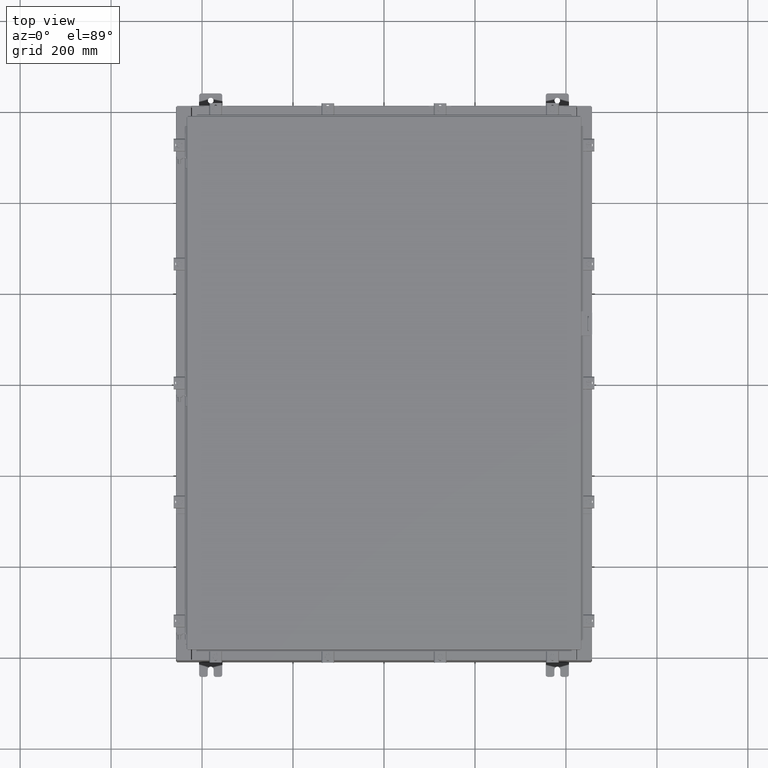
[diagram: clean part render]
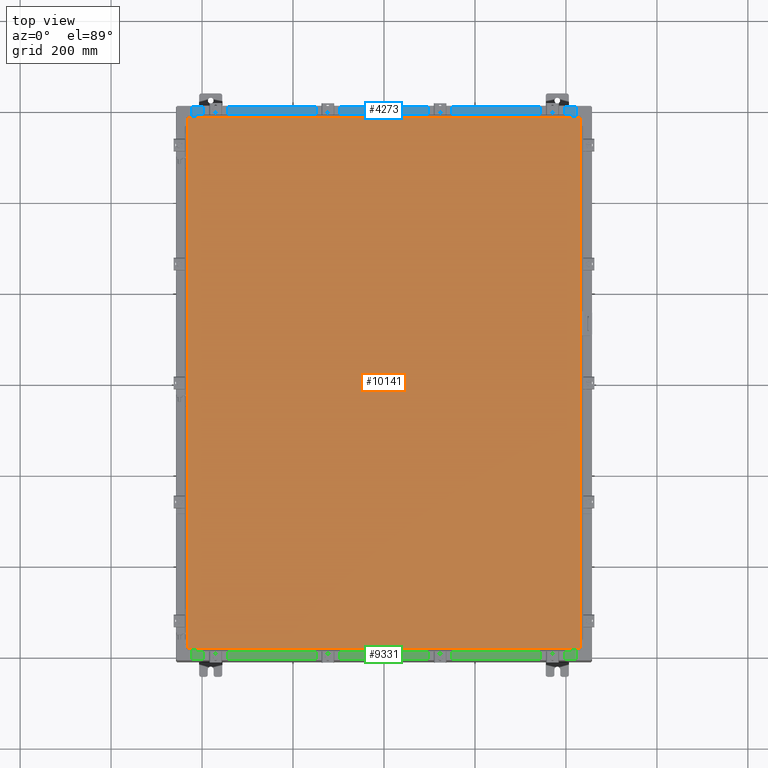
[diagram: same view with three faces highlighted in distinct colors, each labeled with its STEP entity id]
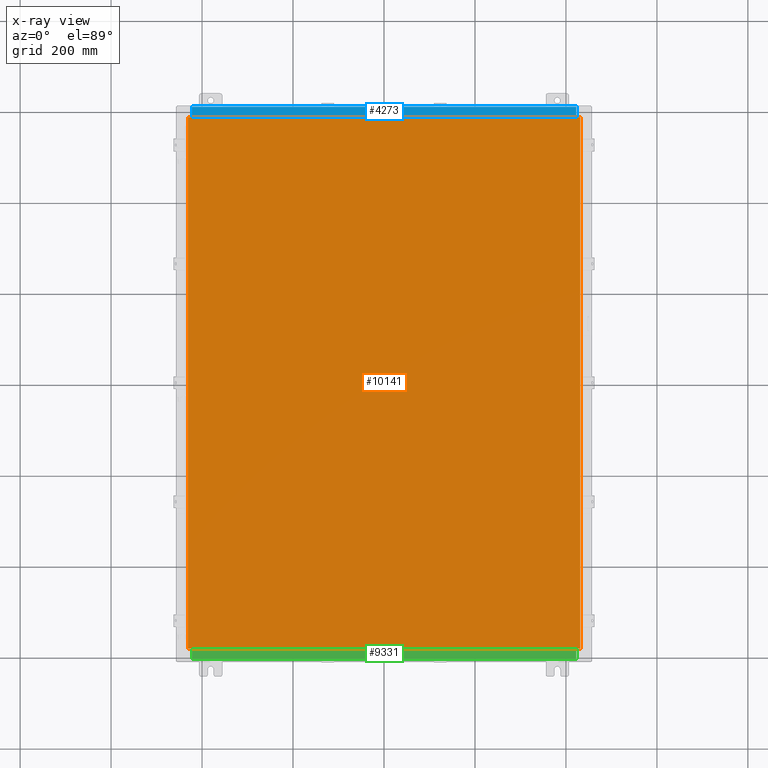
[diagram: x-ray of the same camera — body ghosted, the three highlighted faces saturated]
A machine part, top view with three faces highlighted in distinct colors.
The next image is the same camera in x-ray (body ghosted, the three faces saturated) — at least one of them is partly hidden behind the body in this view.
Their STEP definitions:

[orange] entity #10141 — the highlighted planar face has unit normal (0, 0, -1).
#1304 = PLANE ( 'NONE',  #27178 ) ;
#1415 = CARTESIAN_POINT ( 'NONE',  ( 16.99029999999999800, 23.00630000000000000, 1.946441695485787500E-015 ) ) ;
#2277 = EDGE_CURVE ( 'NONE', #6652, #26027, #12179, .T. ) ;
#3446 = CARTESIAN_POINT ( 'NONE',  ( -16.99029999999999800, 23.00629999999999600, -2.048885995248197400E-016 ) ) ;
#4178 = DIRECTION ( 'NONE',  ( 0.0000000000000000000, 1.000000000000000000, 0.0000000000000000000 ) ) ;
#4452 = ORIENTED_EDGE ( 'NONE', *, *, #8656, .T. ) ;
#5690 = VECTOR ( 'NONE', #4178, 39.37007874015748100 ) ;
#6479 = VECTOR ( 'NONE', #26243, 39.37007874015748100 ) ;
#6652 = VERTEX_POINT ( 'NONE', #15455 ) ;
#7248 = ORIENTED_EDGE ( 'NONE', *, *, #15138, .T. ) ;
#8656 = EDGE_CURVE ( 'NONE', #24892, #6652, #19145, .T. ) ;
#8873 = EDGE_CURVE ( 'NONE', #17264, #24892, #10490, .T. ) ;
#9834 = VECTOR ( 'NONE', #14187, 39.37007874015748100 ) ;
#9868 = DIRECTION ( 'NONE',  ( -1.000000000000000000, 0.0000000000000000000, -0.0000000000000000000 ) ) ;
#10141 = ADVANCED_FACE ( 'NONE', ( #24058 ), #1304, .F. ) ;
#10490 = LINE ( 'NONE', #1415, #9834 ) ;
#10510 = CARTESIAN_POINT ( 'NONE',  ( 16.99030000000000100, -23.00629999999999600, -1.297627796990525000E-015 ) ) ;
#11277 = CARTESIAN_POINT ( 'NONE',  ( 16.99030000000000100, -23.00629999999999600, -1.297627796990525000E-015 ) ) ;
#11350 = LINE ( 'NONE', #10510, #5690 ) ;
#11366 = DIRECTION ( 'NONE',  ( 0.0000000000000000000, -1.000000000000000000, 0.0000000000000000000 ) ) ;
#12179 = LINE ( 'NONE', #17720, #6479 ) ;
#13457 = VECTOR ( 'NONE', #11366, 39.37007874015748100 ) ;
#14056 = CARTESIAN_POINT ( 'NONE',  ( 0.0000000000000000000, 0.0000000000000000000, 0.0000000000000000000 ) ) ;
#14187 = DIRECTION ( 'NONE',  ( -1.000000000000000000, -0.0000000000000000000, -0.0000000000000000000 ) ) ;
#15138 = EDGE_CURVE ( 'NONE', #26027, #17264, #11350, .T. ) ;
#15455 = CARTESIAN_POINT ( 'NONE',  ( -16.99029999999999800, -23.00630000000000000, 2.014737895327394300E-015 ) ) ;
#17264 = VERTEX_POINT ( 'NONE', #27350 ) ;
#17720 = CARTESIAN_POINT ( 'NONE',  ( -16.99029999999999800, -23.00630000000000000, 2.014737895327394300E-015 ) ) ;
#19145 = LINE ( 'NONE', #26259, #13457 ) ;
#21235 = EDGE_LOOP ( 'NONE', ( #23159, #7248, #26903, #4452 ) ) ;
#22623 = DIRECTION ( 'NONE',  ( 0.0000000000000000000, 0.0000000000000000000, -1.000000000000000000 ) ) ;
#23159 = ORIENTED_EDGE ( 'NONE', *, *, #2277, .T. ) ;
#24058 = FACE_OUTER_BOUND ( 'NONE', #21235, .T. ) ;
#24892 = VERTEX_POINT ( 'NONE', #3446 ) ;
#26027 = VERTEX_POINT ( 'NONE', #11277 ) ;
#26243 = DIRECTION ( 'NONE',  ( 1.000000000000000000, -0.0000000000000000000, -0.0000000000000000000 ) ) ;
#26259 = CARTESIAN_POINT ( 'NONE',  ( -16.99029999999999800, 23.00629999999999600, -2.048885995248197400E-016 ) ) ;
#26903 = ORIENTED_EDGE ( 'NONE', *, *, #8873, .T. ) ;
#27178 = AXIS2_PLACEMENT_3D ( 'NONE', #14056, #22623, #9868 ) ;
#27350 = CARTESIAN_POINT ( 'NONE',  ( 16.99029999999999800, 23.00630000000000000, 1.946441695485787500E-015 ) ) ;

[blue] entity #4273 — the highlighted planar face has unit normal (0, 0, 1).
#1080 = VERTEX_POINT ( 'NONE', #18043 ) ;
#2413 = AXIS2_PLACEMENT_3D ( 'NONE', #20930, #27321, #14591 ) ;
#3056 = LINE ( 'NONE', #19678, #19382 ) ;
#3380 = DIRECTION ( 'NONE',  ( -0.0000000000000000000, -1.000000000000000000, 3.566381192773190000E-015 ) ) ;
#4273 = ADVANCED_FACE ( 'NONE', ( #26043 ), #18801, .T. ) ;
#4635 = EDGE_CURVE ( 'NONE', #23179, #15858, #3056, .T. ) ;
#5308 = CARTESIAN_POINT ( 'NONE',  ( 16.63720000000000400, -0.08770000000000047200, 5.000000000000000000 ) ) ;
#5856 = ORIENTED_EDGE ( 'NONE', *, *, #26209, .F. ) ;
#8446 = VECTOR ( 'NONE', #14698, 39.37007874015748100 ) ;
#10020 = VECTOR ( 'NONE', #12972, 39.37007874015748100 ) ;
#10588 = ORIENTED_EDGE ( 'NONE', *, *, #4635, .T. ) ;
#11410 = EDGE_CURVE ( 'NONE', #13137, #1080, #15023, .T. ) ;
#12175 = LINE ( 'NONE', #16130, #23474 ) ;
#12972 = DIRECTION ( 'NONE',  ( -1.000000000000000000, 0.0000000000000000000, 0.0000000000000000000 ) ) ;
#13137 = VERTEX_POINT ( 'NONE', #22002 ) ;
#13898 = CARTESIAN_POINT ( 'NONE',  ( -16.63720000000000000, -0.08770000000000081900, 5.000000000000000000 ) ) ;
#14136 = LINE ( 'NONE', #27426, #8446 ) ;
#14591 = DIRECTION ( 'NONE',  ( 0.0000000000000000000, -1.000000000000000000, 3.566381192773190000E-015 ) ) ;
#14698 = DIRECTION ( 'NONE',  ( -0.0000000000000000000, 1.000000000000000000, -3.566381192773190000E-015 ) ) ;
#14948 = EDGE_LOOP ( 'NONE', ( #20373, #17171, #5856, #10588 ) ) ;
#15023 = LINE ( 'NONE', #25722, #10020 ) ;
#15858 = VERTEX_POINT ( 'NONE', #13898 ) ;
#16130 = CARTESIAN_POINT ( 'NONE',  ( 16.63720000000000000, -1.300299999999999800, 5.000000000000004400 ) ) ;
#17171 = ORIENTED_EDGE ( 'NONE', *, *, #11410, .F. ) ;
#17753 = DIRECTION ( 'NONE',  ( -1.000000000000000000, -3.284023746380717400E-017, 1.171208052571274300E-031 ) ) ;
#18043 = CARTESIAN_POINT ( 'NONE',  ( -16.63720000000000000, -1.287299999999999200, 5.000000000000004400 ) ) ;
#18801 = PLANE ( 'NONE',  #2413 ) ;
#19382 = VECTOR ( 'NONE', #17753, 39.37007874015748100 ) ;
#19678 = CARTESIAN_POINT ( 'NONE',  ( 2.880088825576501100E-018, -0.08770000000000081900, 5.000000000000000000 ) ) ;
#20373 = ORIENTED_EDGE ( 'NONE', *, *, #24248, .F. ) ;
#20930 = CARTESIAN_POINT ( 'NONE',  ( 0.0000000000000000000, 1.782631094477737600E-014, 5.000000000000000000 ) ) ;
#22002 = CARTESIAN_POINT ( 'NONE',  ( 16.63720000000000000, -1.287299999999999900, 5.000000000000004400 ) ) ;
#23179 = VERTEX_POINT ( 'NONE', #5308 ) ;
#23474 = VECTOR ( 'NONE', #3380, 39.37007874015748100 ) ;
#24248 = EDGE_CURVE ( 'NONE', #1080, #15858, #14136, .T. ) ;
#25722 = CARTESIAN_POINT ( 'NONE',  ( 16.63720000000000400, -1.287299999999999900, 5.000000000000002700 ) ) ;
#26043 = FACE_OUTER_BOUND ( 'NONE', #14948, .T. ) ;
#26209 = EDGE_CURVE ( 'NONE', #23179, #13137, #12175, .T. ) ;
#27321 = DIRECTION ( 'NONE',  ( 0.0000000000000000000, 3.566381192773190000E-015, 1.000000000000000000 ) ) ;
#27426 = CARTESIAN_POINT ( 'NONE',  ( -16.63720000000000000, -0.07469999999999973900, 5.000000000000000000 ) ) ;

[green] entity #9331 — the highlighted planar face has unit normal (-0, -0, 1).
#91 = CARTESIAN_POINT ( 'NONE',  ( -16.63720000000000000, -1.287299999999999200, 5.000000000000004400 ) ) ;
#895 = VERTEX_POINT ( 'NONE', #11384 ) ;
#1814 = FACE_OUTER_BOUND ( 'NONE', #26442, .T. ) ;
#2666 = CARTESIAN_POINT ( 'NONE',  ( 16.63720000000000400, -1.287299999999999900, 5.000000000000002700 ) ) ;
#2686 = CARTESIAN_POINT ( 'NONE',  ( 0.0000000000000000000, 1.782631094477737600E-014, 5.000000000000000000 ) ) ;
#2818 = EDGE_CURVE ( 'NONE', #18762, #23515, #12154, .T. ) ;
#3506 = DIRECTION ( 'NONE',  ( -1.000000000000000000, -3.284023746380717400E-017, 1.171208052571274300E-031 ) ) ;
#3674 = ORIENTED_EDGE ( 'NONE', *, *, #17528, .F. ) ;
#4614 = DIRECTION ( 'NONE',  ( -0.0000000000000000000, 1.000000000000000000, -3.566381192773190000E-015 ) ) ;
#4772 = CARTESIAN_POINT ( 'NONE',  ( 16.63720000000000000, -1.300299999999999800, 5.000000000000004400 ) ) ;
#6052 = LINE ( 'NONE', #17389, #27385 ) ;
#6139 = CARTESIAN_POINT ( 'NONE',  ( 16.63720000000000000, -1.287299999999999900, 5.000000000000004400 ) ) ;
#6712 = ORIENTED_EDGE ( 'NONE', *, *, #2818, .F. ) ;
#9053 = DIRECTION ( 'NONE',  ( -0.0000000000000000000, -1.000000000000000000, 3.566381192773190000E-015 ) ) ;
#9112 = PLANE ( 'NONE',  #27337 ) ;
#9158 = VERTEX_POINT ( 'NONE', #91 ) ;
#9331 = ADVANCED_FACE ( 'NONE', ( #1814 ), #9112, .T. ) ;
#9727 = VECTOR ( 'NONE', #11222, 39.37007874015748100 ) ;
#10487 = EDGE_CURVE ( 'NONE', #9158, #895, #6052, .T. ) ;
#11222 = DIRECTION ( 'NONE',  ( -1.000000000000000000, 0.0000000000000000000, 0.0000000000000000000 ) ) ;
#11245 = DIRECTION ( 'NONE',  ( 0.0000000000000000000, 3.566381192773190000E-015, 1.000000000000000000 ) ) ;
#11384 = CARTESIAN_POINT ( 'NONE',  ( -16.63720000000000000, -0.08770000000000081900, 5.000000000000000000 ) ) ;
#12154 = LINE ( 'NONE', #4772, #22811 ) ;
#12882 = ORIENTED_EDGE ( 'NONE', *, *, #10487, .F. ) ;
#17389 = CARTESIAN_POINT ( 'NONE',  ( -16.63720000000000000, -0.07469999999999973900, 5.000000000000000000 ) ) ;
#17528 = EDGE_CURVE ( 'NONE', #23515, #9158, #26026, .T. ) ;
#18427 = CARTESIAN_POINT ( 'NONE',  ( 2.880088825576501100E-018, -0.08770000000000081900, 5.000000000000000000 ) ) ;
#18561 = VECTOR ( 'NONE', #3506, 39.37007874015748100 ) ;
#18762 = VERTEX_POINT ( 'NONE', #22100 ) ;
#19863 = LINE ( 'NONE', #18427, #18561 ) ;
#22100 = CARTESIAN_POINT ( 'NONE',  ( 16.63720000000000400, -0.08770000000000047200, 5.000000000000000000 ) ) ;
#22782 = ORIENTED_EDGE ( 'NONE', *, *, #25541, .T. ) ;
#22811 = VECTOR ( 'NONE', #9053, 39.37007874015748100 ) ;
#23515 = VERTEX_POINT ( 'NONE', #6139 ) ;
#25541 = EDGE_CURVE ( 'NONE', #18762, #895, #19863, .T. ) ;
#26026 = LINE ( 'NONE', #2666, #9727 ) ;
#26140 = DIRECTION ( 'NONE',  ( 0.0000000000000000000, -1.000000000000000000, 3.566381192773190000E-015 ) ) ;
#26442 = EDGE_LOOP ( 'NONE', ( #12882, #3674, #6712, #22782 ) ) ;
#27337 = AXIS2_PLACEMENT_3D ( 'NONE', #2686, #11245, #26140 ) ;
#27385 = VECTOR ( 'NONE', #4614, 39.37007874015748100 ) ;